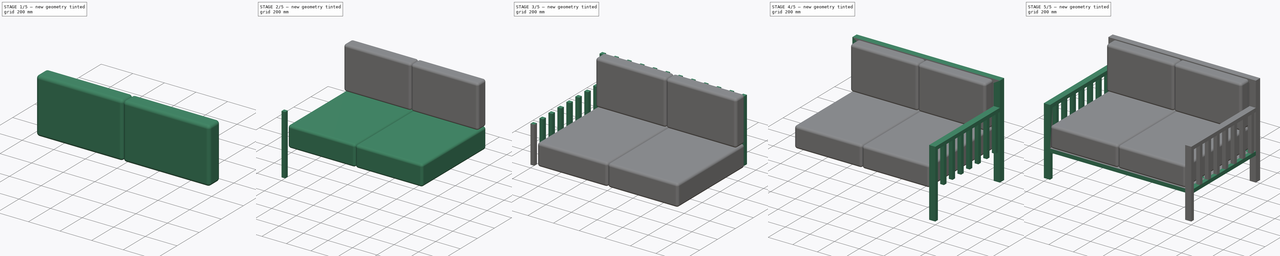
[diagram: build sequence overview — one tinted view per stage of 5, left to right]
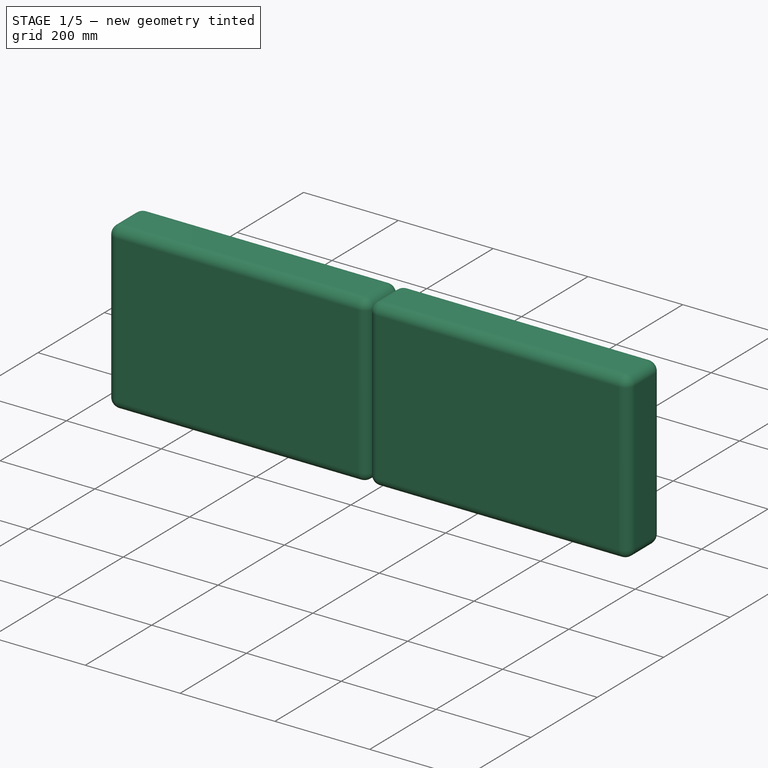
[diagram: stage 1 of 5 — iso view after this stage's code; geometry added in this stage tinted green]
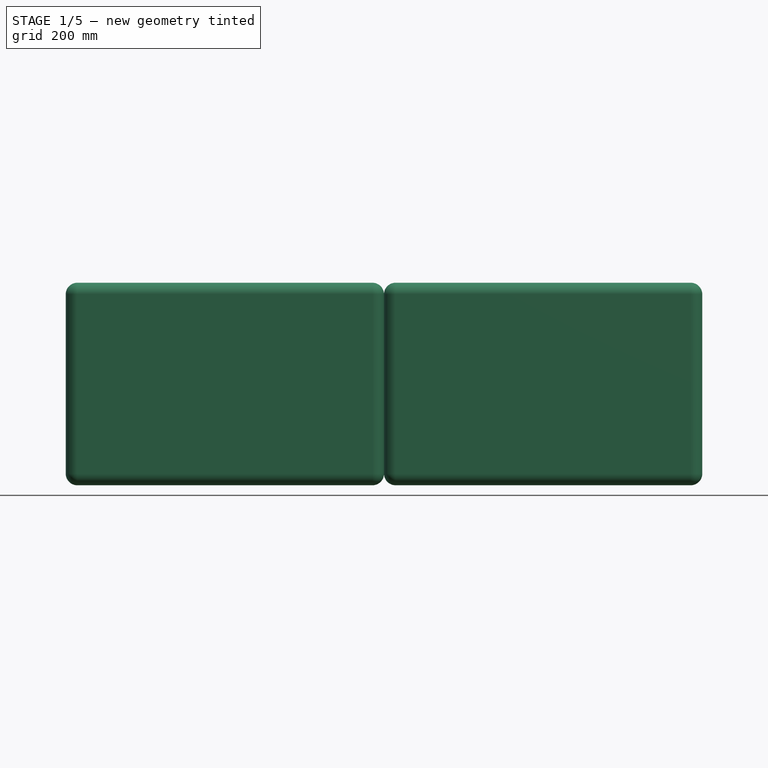
[diagram: stage 1 of 5 — front view after this stage's code; geometry added in this stage tinted green]
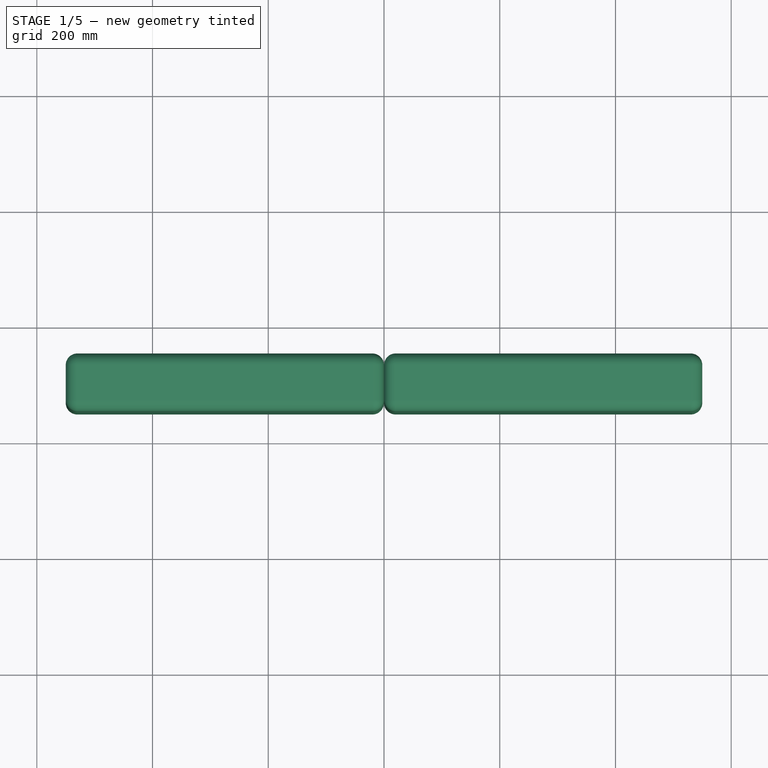
[diagram: stage 1 of 5 — top view after this stage's code; geometry added in this stage tinted green]
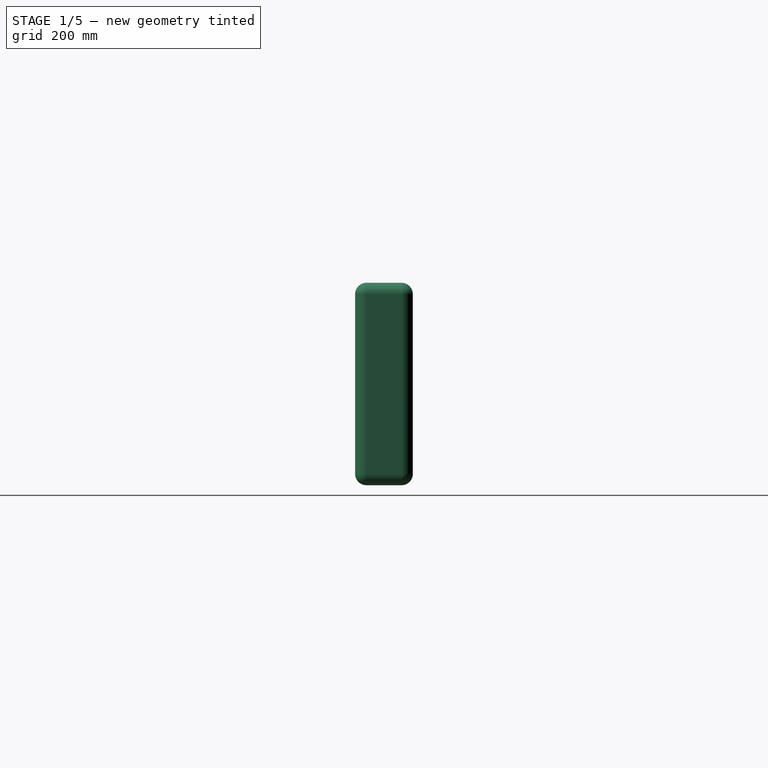
[diagram: stage 1 of 5 — right view after this stage's code; geometry added in this stage tinted green]
FCSTD DOCUMENT  (FreeCAD 0.21R33668 +26 (Git))
Label: Sofá area externa
License: All rights reserved
objects: Part::FeaturePython×7, Part::Extrusion×7, Sketcher::SketchObject×6, Part::Fillet×2, Part::MultiFuse×1, Part::Compound×1
note: 24 computed .brp shape members not serialized (recipe doc carries the construction recipe); baked Part::Feature solids carry a one-line shape summary decoded from their .brp

FEATURE [Sketcher::SketchObject] Sketch005
  FullyConstrained = true
  Placement = pos=(0,0,0) rot=(1,0,0;1.5708rad)
  expr: Constraints[10] = (<<Propriedades sofá externo>>.Comprimento - 2 * <<Propriedades sofá externo>>.LarguraPe) / <<Propriedades sofá externo>>.NumAcentos
  expr: Constraints[9] = <<Propriedades sofá externo>>.AlturaEscora - <<Propriedades sofá externo>>.AlturaAcento
  sketch-geometry (4):
    g0: LineSegment StartX=0 StartY=0 StartZ=0 EndX=550 EndY=0 EndZ=0
    g1: LineSegment StartX=550 StartY=0 StartZ=0 EndX=550 EndY=350 EndZ=0
    g2: LineSegment StartX=550 StartY=350 StartZ=0 EndX=0 EndY=350 EndZ=0
    g3: LineSegment StartX=0 StartY=350 StartZ=0 EndX=0 EndY=0 EndZ=0
  constraints (11):
    c: Coincident(g0,g1)
    c: Coincident(g1,g2)
    c: Coincident(g2,g3)
    c: Coincident(g3,g0)
    c: Horizontal(g0)
    c: Horizontal(g2)
    c: Vertical(g1)
    c: Vertical(g3)
    c: Coincident(g0,g-1)
    c: DistanceY(g3,g3) = 350
    c: DistanceX(g2,g2) = 550
FEATURE [Part::Extrusion] Extrude006  label="Extrude007"
  Base = -> Sketch005
  Dir = (0,-1,2e-16)
  DirMode = 2
  FaceMakerClass = Part::FaceMakerBullseye
  LengthFwd = 100
  LengthRev = 0
  Solid = true
  Symmetric = false
FEATURE [Part::Fillet] Fillet001
  Base = -> Extrude006
  Edges = 12 edges r=20: [Edge1,Edge2,Edge3,Edge4,Edge5,Edge6,Edge7,Edge8,Edge9,Edge10,Edge11,Edge12]
FEATURE [Part::FeaturePython] Array003  label="Array004"  # Draft array (typed FeaturePython)
  Angle = 360
  ArrayType = 0
  Axis = (0,0,1)
  Base = -> Fillet001
  Center = (0,0,0)
  Count = 2
  Fuse = true
  IntervalAxis = (0,0,0)
  IntervalX = (550,0,0)
  IntervalY = (0,100,0)
  IntervalZ = (0,0,100)
  NumberCircles = 3
  NumberPolar = 5
  NumberX = 2
  NumberY = 1
  NumberZ = 1
  Placement = pos=(50,750,400) rot=(0,0,1;0rad)
  RadialDistance = 50
  Symmetry = 1
  TangentialDistance = 25
  expr: .IntervalX.x = (<<Propriedades sofá externo>>.Comprimento - 2 * <<Propriedades sofá externo>>.LarguraPe) / <<Propriedades sofá externo>>.NumAcentos
  expr: .Placement.Base.x = <<Propriedades sofá externo>>.LarguraPe
  expr: .Placement.Base.y = <<Propriedades sofá externo>>.Largura - <<Propriedades sofá externo>>.LarguraPe
  expr: .Placement.Base.z = <<Propriedades sofá externo>>.AlturaAcento
  expr: NumberX = <<Propriedades sofá externo>>.NumAcentos
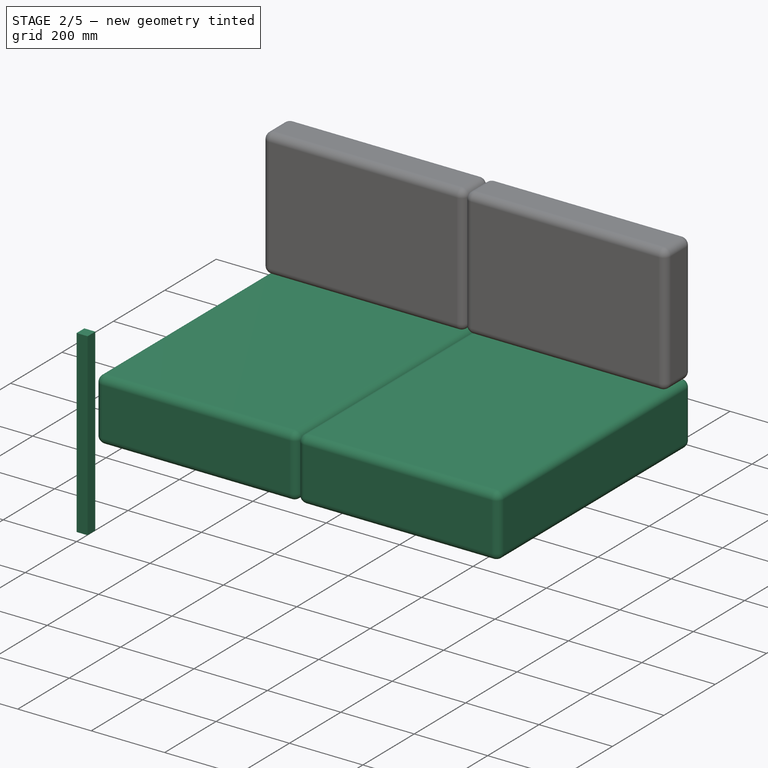
[diagram: stage 2 of 5 — iso view after this stage's code; geometry added in this stage tinted green]
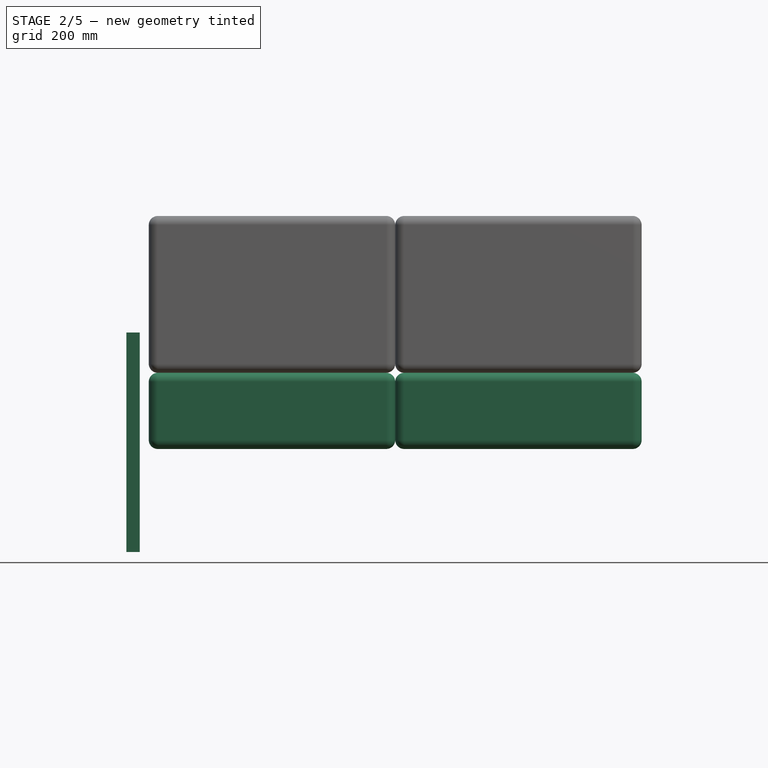
[diagram: stage 2 of 5 — front view after this stage's code; geometry added in this stage tinted green]
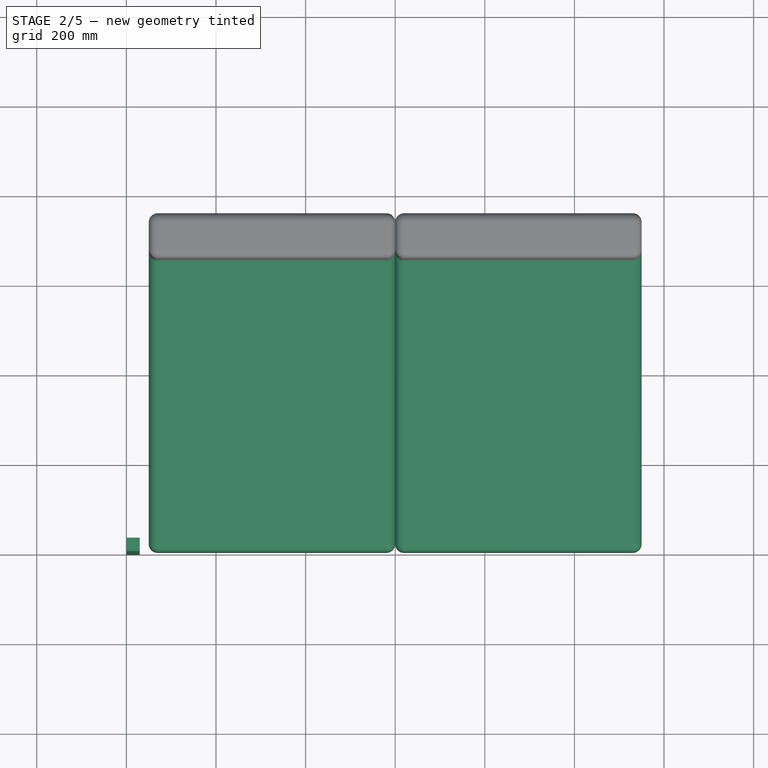
[diagram: stage 2 of 5 — top view after this stage's code; geometry added in this stage tinted green]
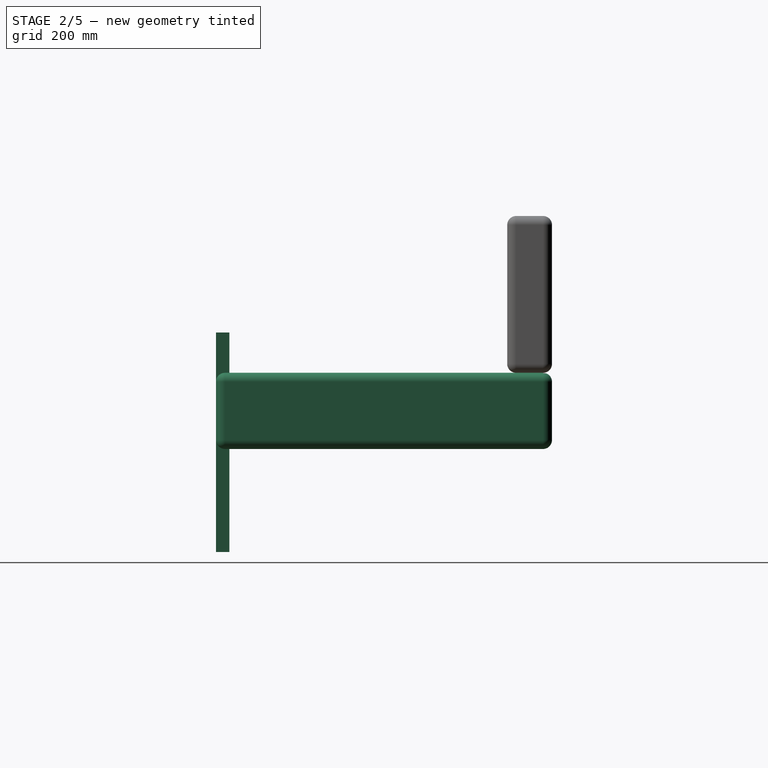
[diagram: stage 2 of 5 — right view after this stage's code; geometry added in this stage tinted green]
FEATURE [Part::Extrusion] Extrude004  label="Extrude006"
  Base = -> Sketch003
  Dir = (0,0,1)
  DirMode = 2
  FaceMakerClass = Part::FaceMakerBullseye
  LengthFwd = 490
  LengthRev = 0
  Solid = true
  Symmetric = false
  expr: LengthFwd = <<Propriedades sofá externo>>.AlturaEscora - <<Propriedades sofá externo>>.AlturaPe - 6 cm
FEATURE [Sketcher::SketchObject] Sketch004
  FullyConstrained = true
  expr: Constraints[10] = (<<Propriedades sofá externo>>.Comprimento - 2 * <<Propriedades sofá externo>>.LarguraPe) / <<Propriedades sofá externo>>.NumAcentos
  expr: Constraints[9] = <<Propriedades sofá externo>>.Largura - <<Propriedades sofá externo>>.LarguraPe
  sketch-geometry (4):
    g0: LineSegment StartX=0 StartY=0 StartZ=0 EndX=550 EndY=0 EndZ=0
    g1: LineSegment StartX=550 StartY=0 StartZ=0 EndX=550 EndY=750 EndZ=0
    g2: LineSegment StartX=550 StartY=750 StartZ=0 EndX=0 EndY=750 EndZ=0
    g3: LineSegment StartX=0 StartY=750 StartZ=0 EndX=0 EndY=0 EndZ=0
  constraints (11):
    c: Coincident(g0,g1)
    c: Coincident(g1,g2)
    c: Coincident(g2,g3)
    c: Coincident(g3,g0)
    c: Horizontal(g0)
    c: Horizontal(g2)
    c: Vertical(g1)
    c: Vertical(g3)
    c: Coincident(g0,g-1)
    c: DistanceY(g3,g3) = 750
    c: DistanceX(g2,g2) = 550
FEATURE [Part::Extrusion] Extrude005  label="Almofada"
  Base = -> Sketch004
  Dir = (0,0,1)
  DirMode = 2
  FaceMakerClass = Part::FaceMakerBullseye
  LengthFwd = 170
  LengthRev = 0
  Solid = true
  Symmetric = false
  expr: LengthFwd = <<Propriedades sofá externo>>.AlturaAcento - 3 cm - <<Propriedades sofá externo>>.AlturaPe
FEATURE [Part::Fillet] Fillet
  Base = -> Extrude005
  Edges = 12 edges r=20: [Edge1,Edge2,Edge3,Edge4,Edge5,Edge6,Edge7,Edge8,Edge9,Edge10,Edge11,Edge12]
FEATURE [Part::FeaturePython] Array002  label="Array003"  # Draft array (typed FeaturePython)
  Angle = 360
  ArrayType = 0
  Axis = (0,0,1)
  Base = -> Fillet
  Center = (0,0,0)
  Count = 2
  Fuse = true
  IntervalAxis = (0,0,0)
  IntervalX = (550,0,0)
  IntervalY = (0,100,0)
  IntervalZ = (0,0,100)
  NumberCircles = 3
  NumberPolar = 5
  NumberX = 2
  NumberY = 1
  NumberZ = 1
  Placement = pos=(50,0,230) rot=(0,0,1;0rad)
  RadialDistance = 50
  Symmetry = 1
  TangentialDistance = 25
  expr: .IntervalX.x = (<<Propriedades sofá externo>>.Comprimento - 2 * <<Propriedades sofá externo>>.LarguraPe) / <<Propriedades sofá externo>>.NumAcentos
  expr: .Placement.Base.x = <<Propriedades sofá externo>>.LarguraPe
  expr: .Placement.Base.z = <<Propriedades sofá externo>>.AlturaPe + 3 cm
  expr: NumberX = <<Propriedades sofá externo>>.NumAcentos
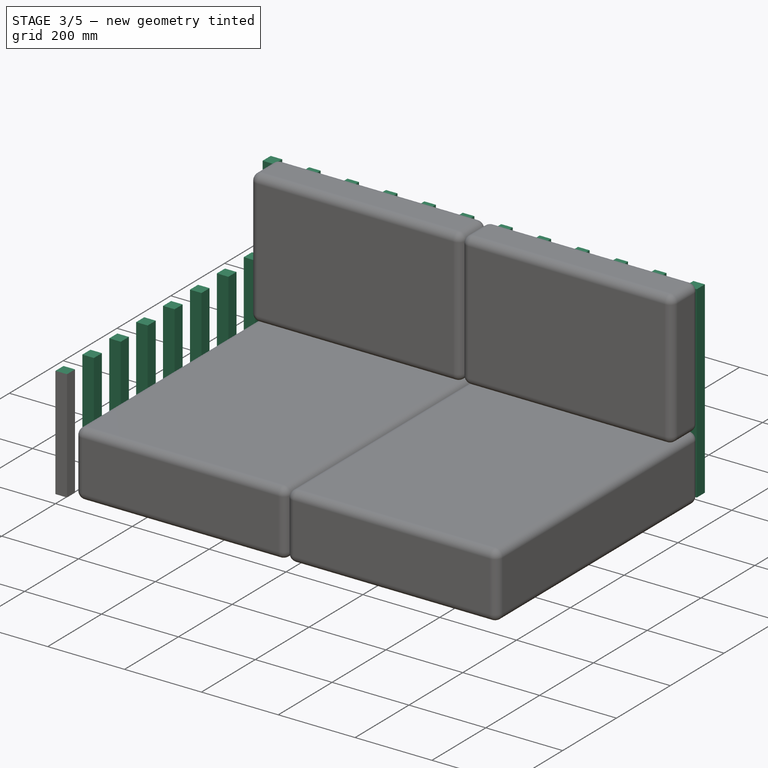
[diagram: stage 3 of 5 — iso view after this stage's code; geometry added in this stage tinted green]
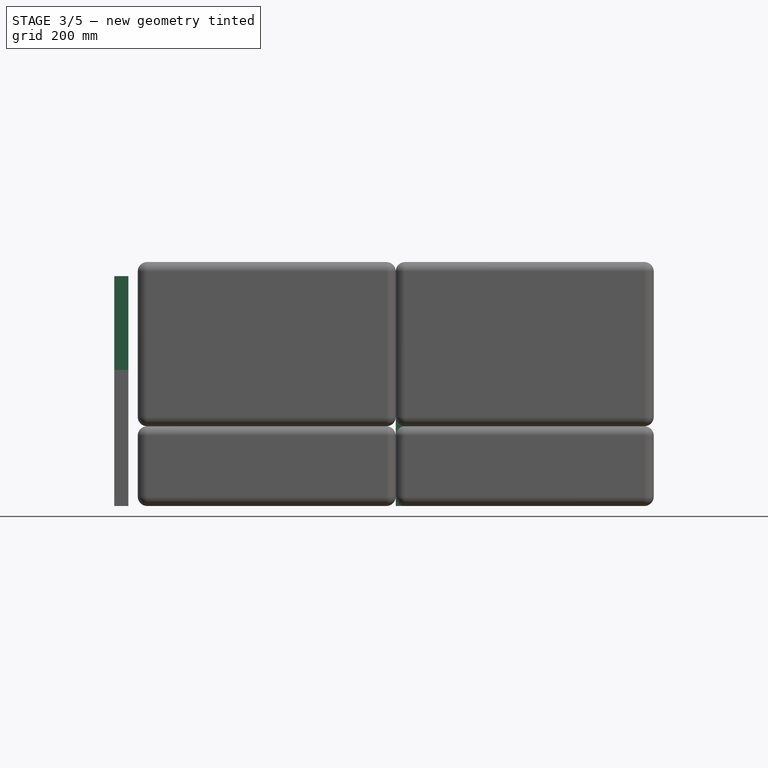
[diagram: stage 3 of 5 — front view after this stage's code; geometry added in this stage tinted green]
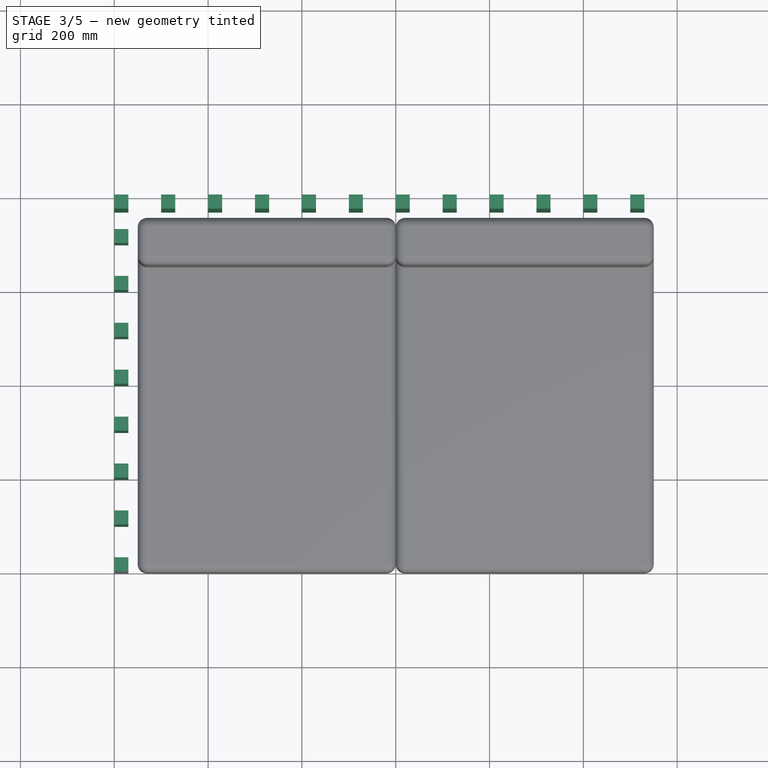
[diagram: stage 3 of 5 — top view after this stage's code; geometry added in this stage tinted green]
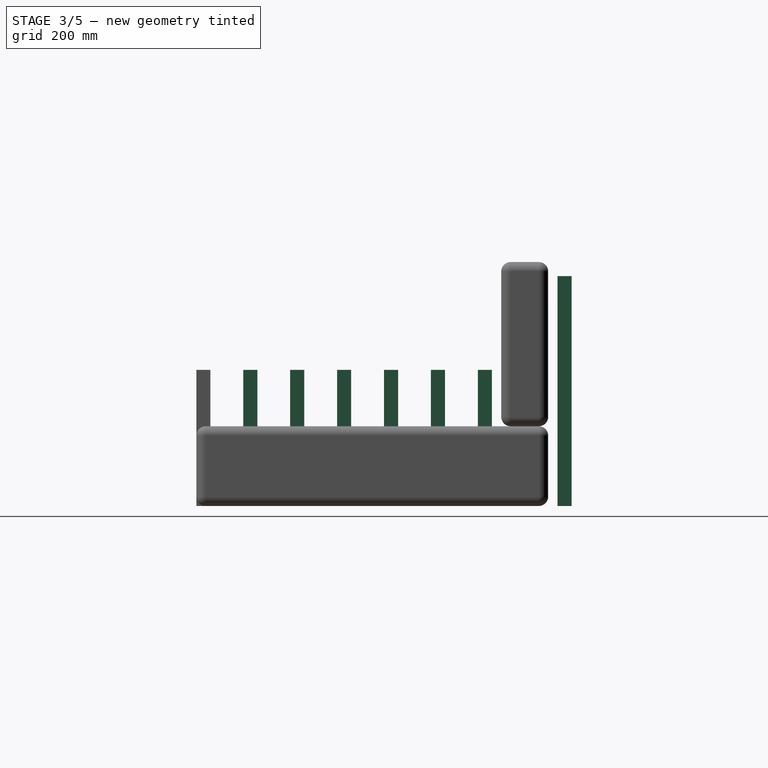
[diagram: stage 3 of 5 — right view after this stage's code; geometry added in this stage tinted green]
FEATURE [Sketcher::SketchObject] Sketch003
  FullyConstrained = true
  sketch-geometry (4):
    g0: LineSegment StartX=0 StartY=0 StartZ=0 EndX=30 EndY=0 EndZ=0
    g1: LineSegment StartX=30 StartY=0 StartZ=0 EndX=30 EndY=30 EndZ=0
    g2: LineSegment StartX=30 StartY=30 StartZ=0 EndX=0 EndY=30 EndZ=0
    g3: LineSegment StartX=0 StartY=30 StartZ=0 EndX=0 EndY=0 EndZ=0
  constraints (11):
    c: Coincident(g0,g1)
    c: Coincident(g1,g2)
    c: Coincident(g2,g3)
    c: Coincident(g3,g0)
    c: Horizontal(g0)
    c: Horizontal(g2)
    c: Vertical(g1)
    c: Vertical(g3)
    c: Coincident(g0,g-1)
    c: Equal(g2,g1)
    c: DistanceX(g2,g2) = 30
FEATURE [Part::Extrusion] Extrude003
  Base = -> Sketch003
  Dir = (0,0,1)
  DirMode = 2
  FaceMakerClass = Part::FaceMakerBullseye
  LengthFwd = 290
  LengthRev = 0
  Solid = true
  Symmetric = false
  expr: LengthFwd = <<Propriedades sofá externo>>.AlturaBraco - <<Propriedades sofá externo>>.AlturaPe - 6 cm
FEATURE [Part::FeaturePython] Array  # Draft array (typed FeaturePython)
  Angle = 360
  ArrayType = 0
  Axis = (0,0,1)
  Base = -> Extrude003
  Center = (0,0,0)
  Count = 8
  Fuse = true
  IntervalAxis = (0,0,0)
  IntervalX = (100,0,0)
  IntervalY = (0,100,0)
  IntervalZ = (0,0,100)
  NumberCircles = 3
  NumberPolar = 5
  NumberX = 1
  NumberY = 8
  NumberZ = 1
  Placement = pos=(0,0,230) rot=(0,0,1;0rad)
  RadialDistance = 50
  Symmetry = 1
  TangentialDistance = 25
  expr: .Placement.Base.z = <<Propriedades sofá externo>>.AlturaPe + 3 cm
  expr: NumberY = <<Propriedades sofá externo>>.Largura / 10 cm
FEATURE [Part::FeaturePython] Array001  label="Array002"  # Draft array (typed FeaturePython)
  Angle = 360
  ArrayType = 0
  Axis = (0,0,1)
  Base = -> Extrude004
  Center = (0,0,0)
  Count = 12
  Fuse = true
  IntervalAxis = (0,0,0)
  IntervalX = (100,0,0)
  IntervalY = (0,100,0)
  IntervalZ = (0,0,100)
  NumberCircles = 3
  NumberPolar = 5
  NumberX = 12
  NumberY = 1
  NumberZ = 1
  Placement = pos=(0,770,230) rot=(0,0,1;0rad)
  RadialDistance = 50
  Symmetry = 1
  TangentialDistance = 25
  expr: .Placement.Base.y = <<Propriedades sofá externo>>.Largura - 3 cm
  expr: .Placement.Base.z = <<Propriedades sofá externo>>.AlturaPe + 3 cm
  expr: NumberX = <<Propriedades sofá externo>>.Comprimento / 10 cm
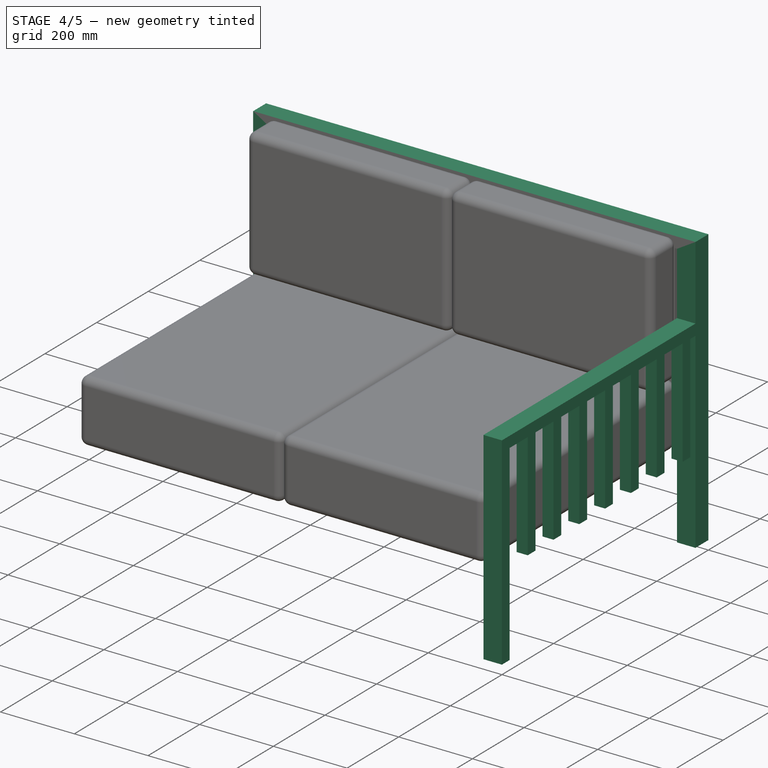
[diagram: stage 4 of 5 — iso view after this stage's code; geometry added in this stage tinted green]
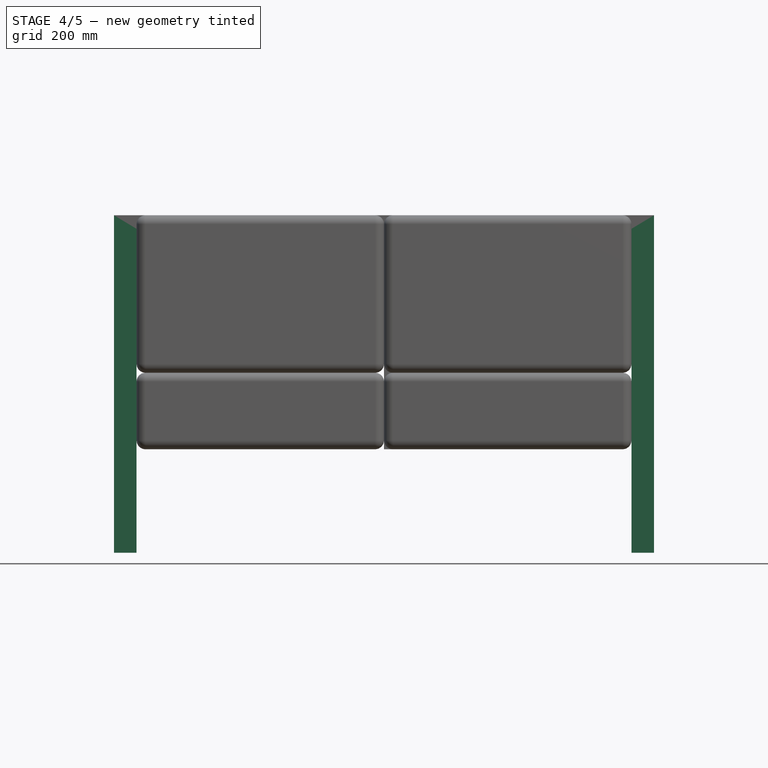
[diagram: stage 4 of 5 — front view after this stage's code; geometry added in this stage tinted green]
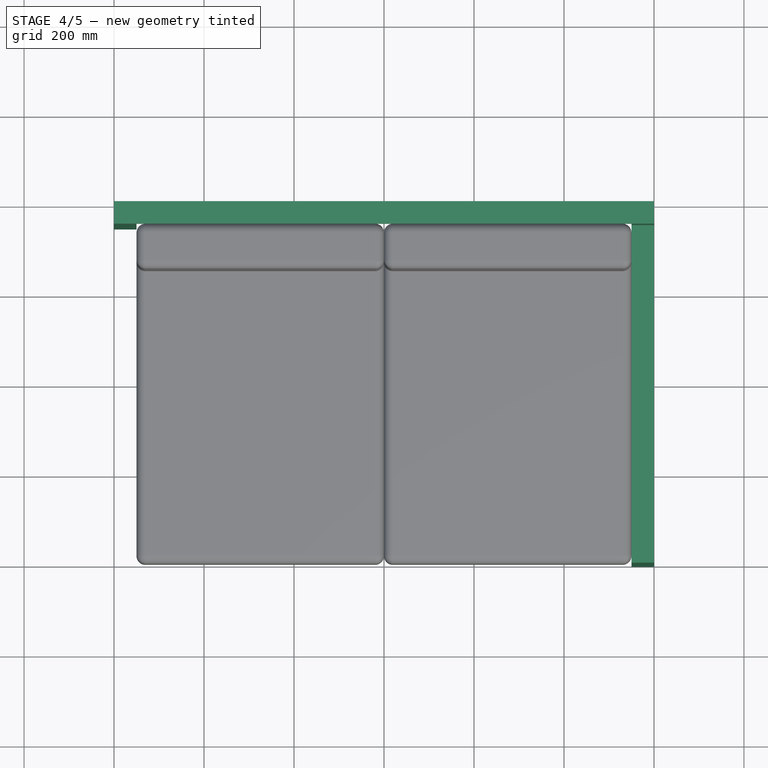
[diagram: stage 4 of 5 — top view after this stage's code; geometry added in this stage tinted green]
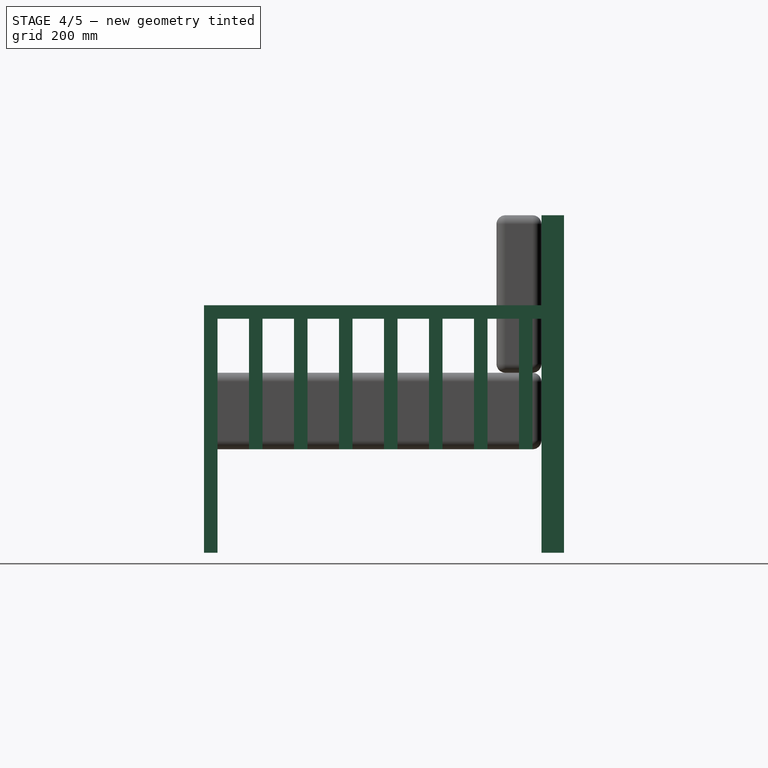
[diagram: stage 4 of 5 — right view after this stage's code; geometry added in this stage tinted green]
FEATURE [Sketcher::SketchObject] Sketch
  FullyConstrained = true
  Placement = pos=(0,0,0) rot=(0.57735,0.57735,0.57735;2.0944rad)
  expr: Constraints[20] = <<Propriedades sofá externo>>.AlturaBraco
  expr: Constraints[21] = <<Propriedades sofá externo>>.Largura
  sketch-geometry (8):
    g0: LineSegment StartX=0 StartY=0 StartZ=0 EndX=30 EndY=0 EndZ=0
    g1: LineSegment StartX=800 StartY=0 StartZ=0 EndX=800 EndY=550 EndZ=0
    g2: LineSegment StartX=800 StartY=550 StartZ=0 EndX=0 EndY=550 EndZ=0
    g3: LineSegment StartX=0 StartY=550 StartZ=0 EndX=0 EndY=0 EndZ=0
    g4: LineSegment StartX=770 StartY=0 StartZ=0 EndX=770 EndY=520 EndZ=0
    g5: LineSegment StartX=770 StartY=520 StartZ=0 EndX=30 EndY=520 EndZ=0
    g6: LineSegment StartX=30 StartY=520 StartZ=0 EndX=30 EndY=0 EndZ=0
    g7: LineSegment StartX=770 StartY=0 StartZ=0 EndX=800 EndY=0 EndZ=0
  constraints (23):
    c: Coincident(g7,g1)
    c: Coincident(g1,g2)
    c: Coincident(g2,g3)
    c: Coincident(g3,g0)
    c: Horizontal(g0)
    c: Horizontal(g2)
    c: Vertical(g1)
    c: Vertical(g3)
    c: Coincident(g4,g5)
    c: Coincident(g5,g6)
    c: Horizontal(g5)
    c: Vertical(g4)
    c: Vertical(g6)
    c: Coincident(g6,g0)
    c: Coincident(g4,g7)
    c: Horizontal(g7)
    c: PointOnObject(g4,g-1)
    c: Equal(g0,g7)
    c: DistanceX(g0,g0) = 30
    c: DistanceY(g5,g2) = 30
    c: DistanceY(g1,g1) = 550
    c: DistanceX(g2,g2) = 800
    c: Coincident(g0,g-1)
FEATURE [Part::Extrusion] Extrude
  Base = -> Sketch
  Dir = (1,0,0)
  DirMode = 2
  FaceMakerClass = Part::FaceMakerBullseye
  LengthFwd = 50
  LengthRev = 0
  Solid = true
  Symmetric = false
  expr: LengthFwd = <<Propriedades sofá externo>>.LarguraPe
FEATURE [Part::FeaturePython] Clone  label="Extrude005"  # Draft clone (typed FeaturePython)
  AttacherType = Attacher::AttachEngine3D
  Fuse = false
  Objects = -> [Extrude]
  Placement = pos=(1150,0,0) rot=(0,0,1;0rad)
  Scale = (1,1,1)
  expr: .Placement.Base.x = <<Propriedades sofá externo>>.Comprimento - <<Propriedades sofá externo>>.LarguraPe
FEATURE [Sketcher::SketchObject] Sketch002
  FullyConstrained = true
  Placement = pos=(0,0,0) rot=(1,0,0;1.5708rad)
  expr: Constraints[14] = <<Propriedades sofá externo>>.AlturaEscora
  expr: Constraints[19] = <<Propriedades sofá externo>>.LarguraPe
  expr: Constraints[20] = <<Propriedades sofá externo>>.Comprimento
  expr: Constraints[21] = 3 cm
  expr: Constraints[22] = <<Propriedades sofá externo>>.LarguraPe
  sketch-geometry (8):
    g0: LineSegment StartX=0 StartY=0 StartZ=0 EndX=50 EndY=0 EndZ=0
    g1: LineSegment StartX=1200 StartY=0 StartZ=0 EndX=1200 EndY=750 EndZ=0
    g2: LineSegment StartX=1200 StartY=750 StartZ=0 EndX=0 EndY=750 EndZ=0
    g3: LineSegment StartX=0 StartY=750 StartZ=0 EndX=0 EndY=0 EndZ=0
    g4: LineSegment StartX=1150 StartY=0 StartZ=0 EndX=1150 EndY=720 EndZ=0
    g5: LineSegment StartX=1150 StartY=720 StartZ=0 EndX=50 EndY=720 EndZ=0
    g6: LineSegment StartX=50 StartY=720 StartZ=0 EndX=50 EndY=0 EndZ=0
    g7: LineSegment StartX=1150 StartY=0 StartZ=0 EndX=1200 EndY=0 EndZ=0
  constraints (23):
    c: Coincident(g7,g1)
    c: Coincident(g1,g2)
    c: Coincident(g2,g3)
    c: Coincident(g3,g0)
    c: Horizontal(g0)
    c: Horizontal(g2)
    c: Vertical(g1)
    c: Vertical(g3)
    c: Coincident(g0,g-1)
    c: Coincident(g4,g5)
    c: Coincident(g5,g6)
    c: Horizontal(g5)
    c: Vertical(g4)
    c: Vertical(g6)
    c: DistanceY(g1,g1) = 750
    c: Horizontal(g7)
    c: Coincident(g7,g4)
    c: Coincident(g6,g0)
    c: PointOnObject(g4,g-1)
    c: DistanceX(g7,g7) = 50
    c: DistanceX(g2,g2) = 1200
    c: DistanceY(g4,g1) = 30
    c: DistanceX(g0,g0) = 50
FEATURE [Part::Extrusion] Extrude002
  Base = -> Sketch002
  Dir = (0,-1,2e-16)
  DirMode = 2
  FaceMakerClass = Part::FaceMakerBullseye
  LengthFwd = 50
  LengthRev = 0
  Placement = pos=(0,800,0) rot=(0,0,1;0rad)
  Solid = true
  Symmetric = false
  expr: .Placement.Base.y = <<Propriedades sofá externo>>.Largura
  expr: LengthFwd = <<Propriedades sofá externo>>.LarguraPe
FEATURE [Part::FeaturePython] Clone001  label="Array001"  # Draft clone (typed FeaturePython)
  AttacherType = Attacher::AttachEngine3D
  Fuse = false
  Objects = -> [Array]
  Placement = pos=(1170,0,230) rot=(0,0,1;0rad)
  Scale = (1,1,1)
  expr: .Placement.Base.x = <<Propriedades sofá externo>>.Comprimento - 3 cm
  expr: .Placement.Base.z = <<Propriedades sofá externo>>.AlturaPe + 3 cm
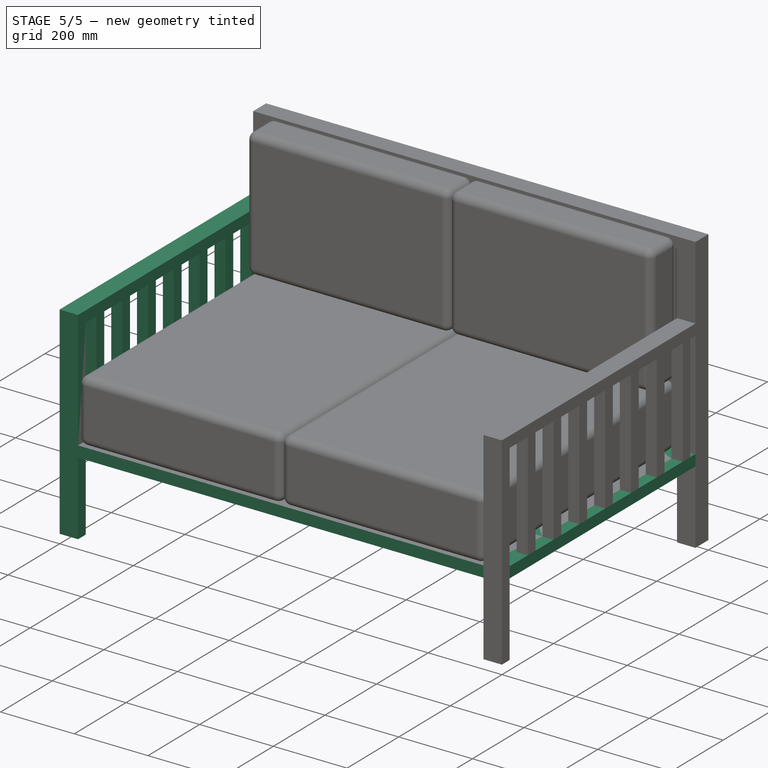
[diagram: stage 5 of 5 — iso view after this stage's code; geometry added in this stage tinted green]
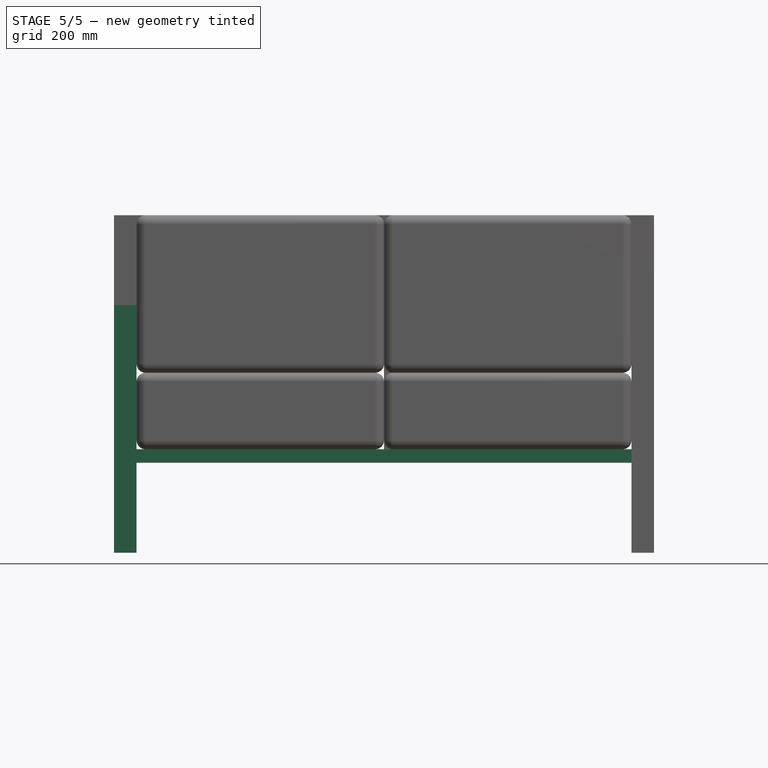
[diagram: stage 5 of 5 — front view after this stage's code; geometry added in this stage tinted green]
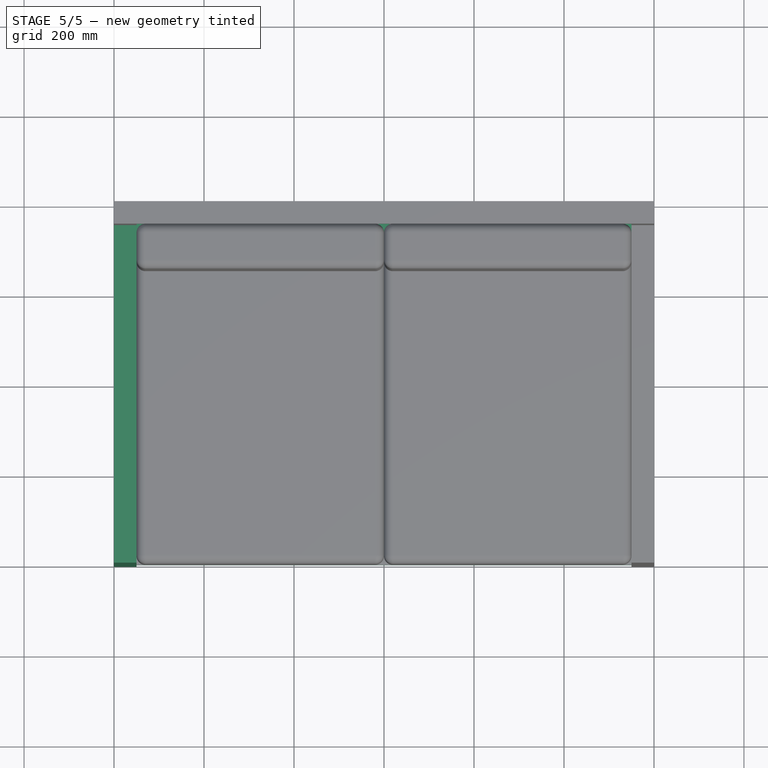
[diagram: stage 5 of 5 — top view after this stage's code; geometry added in this stage tinted green]
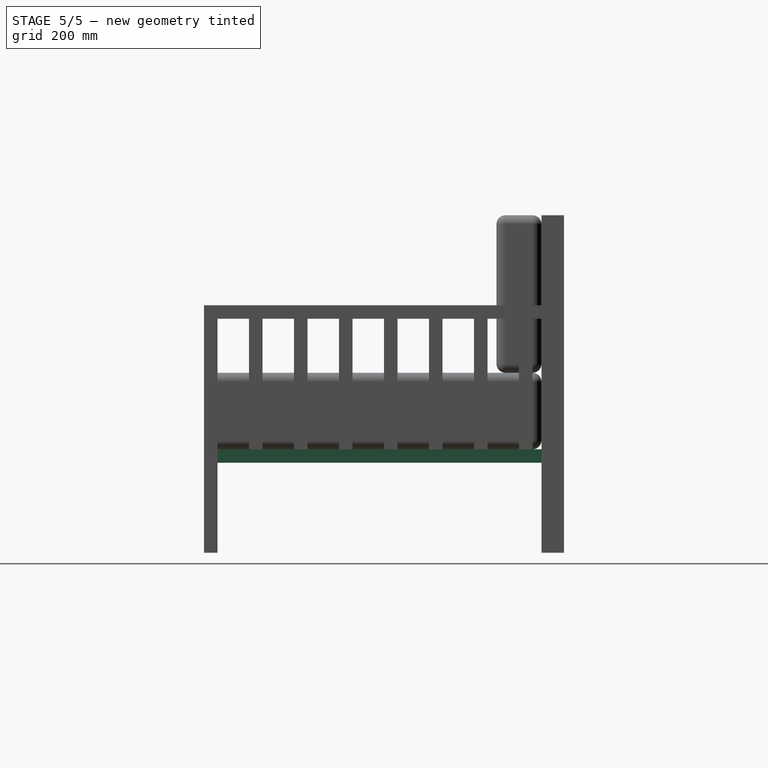
[diagram: stage 5 of 5 — right view after this stage's code; geometry added in this stage tinted green]
FEATURE [Part::FeaturePython] Point  label="Propriedades sofá externo"  # WARN: FeaturePython — macro-defined, semantics opaque (R4)
  AlturaAcento = 400
  AlturaBraco = 550
  AlturaEscora = 750
  AlturaPe = 200
  Comprimento = 1200
  Largura = 800
  LarguraPe = 50
  NumAcentos = 2
  X = 0
  Y = 0
  Z = 0
FEATURE [Sketcher::SketchObject] Sketch001
  FullyConstrained = true
  expr: Constraints[10] = <<Propriedades sofá externo>>.Largura
  expr: Constraints[9] = <<Propriedades sofá externo>>.Comprimento
  sketch-geometry (4):
    g0: LineSegment StartX=0 StartY=0 StartZ=0 EndX=1200 EndY=0 EndZ=0
    g1: LineSegment StartX=1200 StartY=0 StartZ=0 EndX=1200 EndY=800 EndZ=0
    g2: LineSegment StartX=1200 StartY=800 StartZ=0 EndX=0 EndY=800 EndZ=0
    g3: LineSegment StartX=0 StartY=800 StartZ=0 EndX=0 EndY=0 EndZ=0
  constraints (11):
    c: Coincident(g0,g1)
    c: Coincident(g1,g2)
    c: Coincident(g2,g3)
    c: Coincident(g3,g0)
    c: Horizontal(g0)
    c: Horizontal(g2)
    c: Vertical(g1)
    c: Vertical(g3)
    c: Coincident(g0,g-1)
    c: DistanceX(g2,g2) = 1200
    c: DistanceY(g1,g1) = 800
FEATURE [Part::Extrusion] Extrude001  label="Extrude004"
  Base = -> Sketch001
  Dir = (0,0,1)
  DirMode = 2
  FaceMakerClass = Part::FaceMakerBullseye
  LengthFwd = 30
  LengthRev = 0
  Placement = pos=(0,0,200) rot=(0,0,1;0rad)
  Solid = true
  Symmetric = false
  expr: .Placement.Base.z = <<Propriedades sofá externo>>.AlturaPe
FEATURE [Part::MultiFuse] Fusion
  Refine = true
  Shapes = -> [Clone,Extrude,Extrude001,Extrude002,Array,Clone001,Array001]
FEATURE [Part::Compound] Compound  label="Sofá externo"
  Links = -> [Point,Fusion,Array002,Array003]
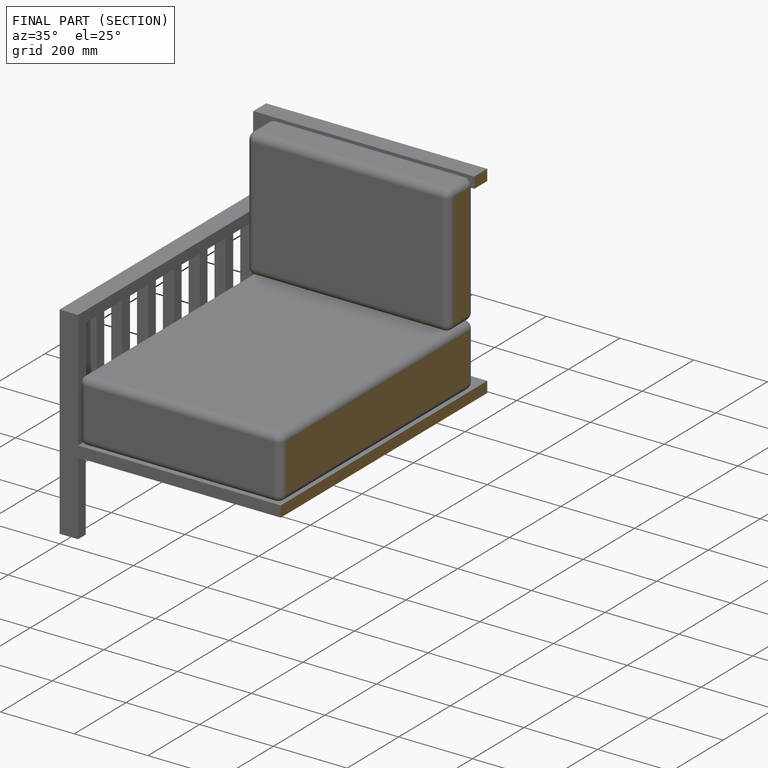
[diagram: finished part — half-section view (interior)]
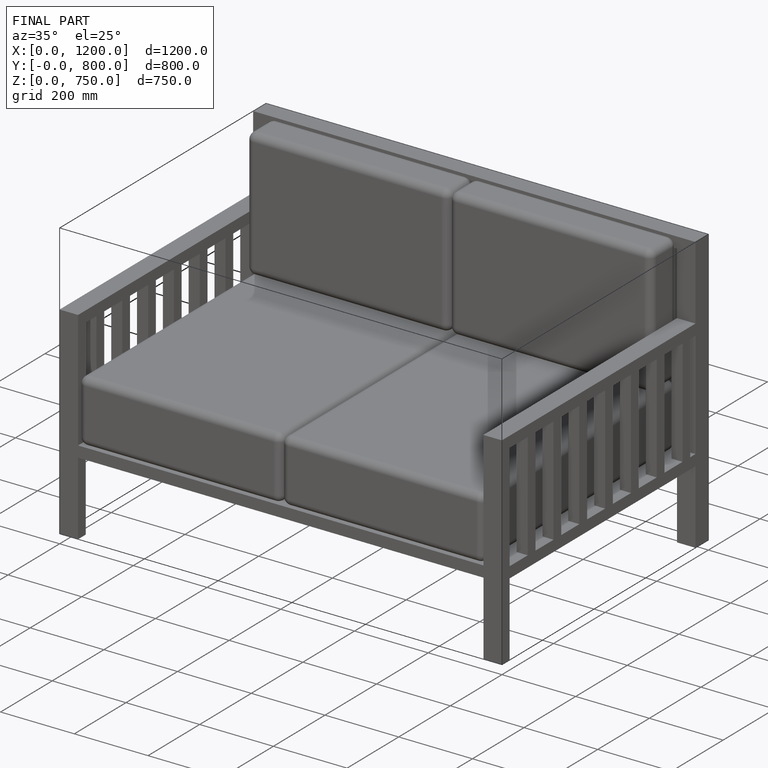
[diagram: finished part — iso view with bounding-box wireframe]
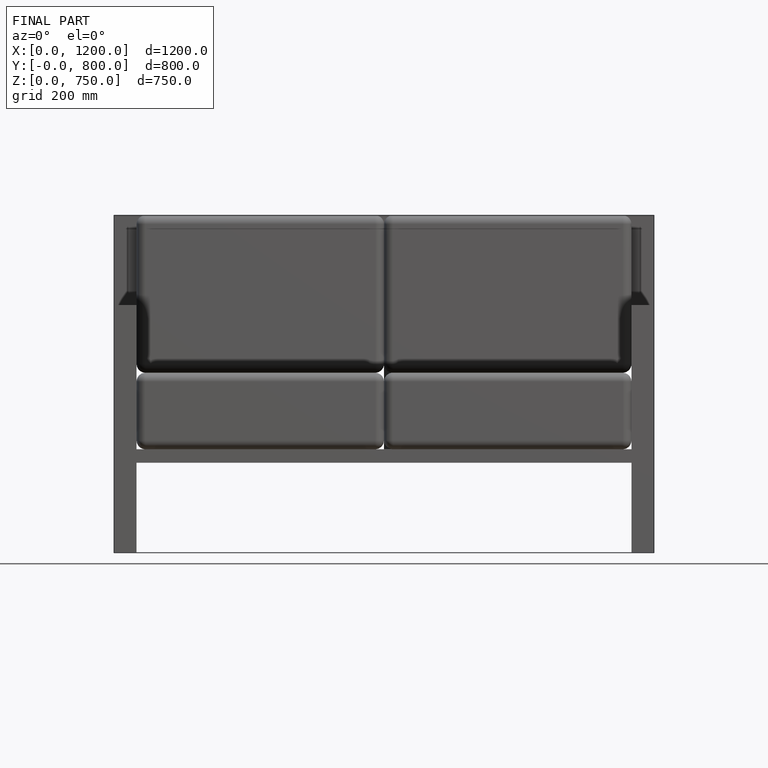
[diagram: finished part — front view with bounding-box wireframe]
